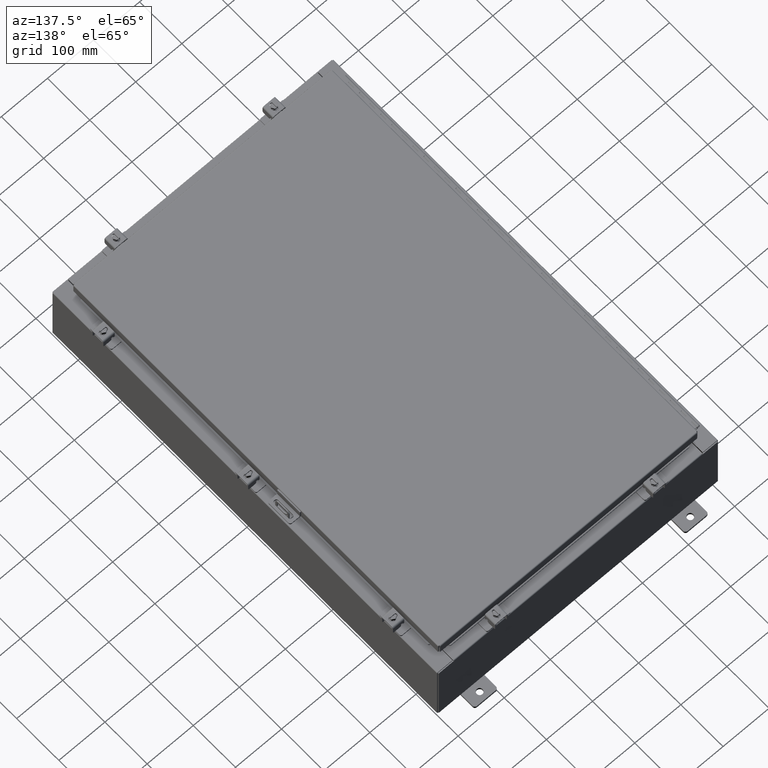
[diagram: clean part render]
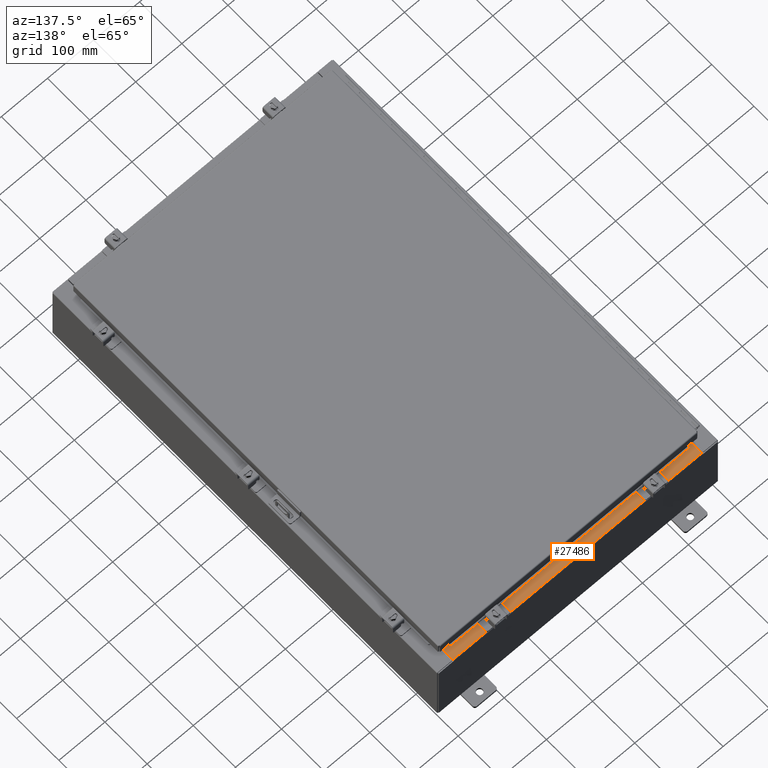
[diagram: same view with one face highlighted and labeled with its STEP entity id]
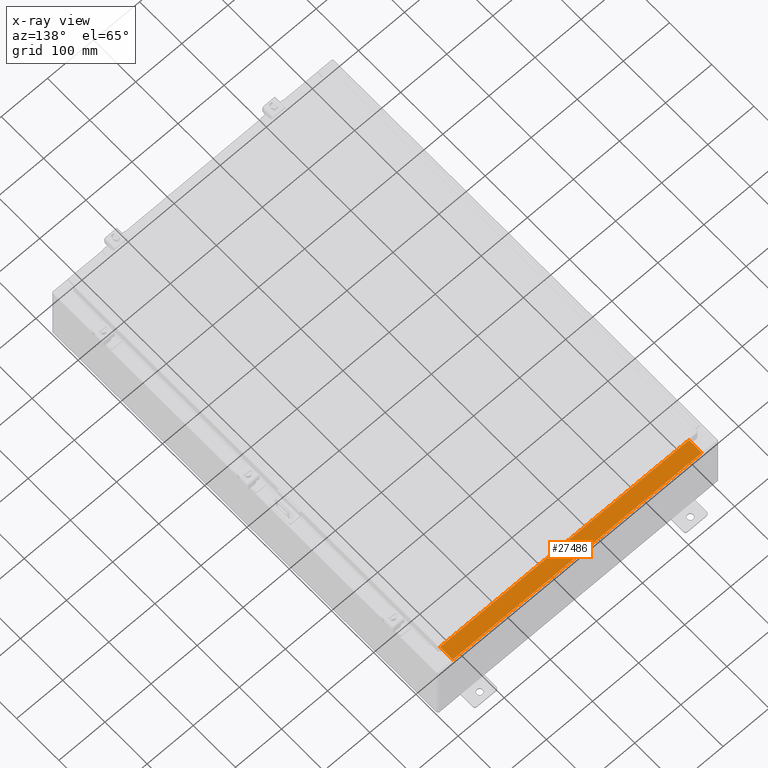
[diagram: x-ray of the same camera — body ghosted, the highlighted face saturated]
A machine part, auxiliary view. The second image highlights one B-rep face of the part: STEP entity #27486.
The next image is the same camera in x-ray: the body ghosted, the highlighted face saturated — about 0% of this face is hidden behind the body in this view.
In plain terms, the highlighted planar face has unit normal (0, 0, 1).
Its self-contained STEP definition (entity closure, byte-faithful):
#235 = CARTESIAN_POINT ( 'NONE',  ( 0.0000000000000000000, 1.069354855923099900E-014, 3.000000000000000900 ) ) ;
#1636 = DIRECTION ( 'NONE',  ( -1.000000000000000000, 0.0000000000000000000, 0.0000000000000000000 ) ) ;
#1914 = CARTESIAN_POINT ( 'NONE',  ( 10.63720000000000400, -0.08769999999999965300, 3.000000000000000900 ) ) ;
#2040 = ORIENTED_EDGE ( 'NONE', *, *, #34037, .T. ) ;
#4123 = DIRECTION ( 'NONE',  ( 0.0000000000000000000, -1.000000000000000000, 3.566381192773190000E-015 ) ) ;
#5288 = LINE ( 'NONE', #31307, #12961 ) ;
#8801 = EDGE_CURVE ( 'NONE', #19296, #25351, #34782, .T. ) ;
#11916 = VECTOR ( 'NONE', #1636, 39.37007874015748100 ) ;
#12663 = CARTESIAN_POINT ( 'NONE',  ( -10.63720000000000200, -1.287299999999999200, 3.000000000000005300 ) ) ;
#12961 = VECTOR ( 'NONE', #14888, 39.37007874015748100 ) ;
#13404 = DIRECTION ( 'NONE',  ( -0.0000000000000000000, -1.000000000000000000, 3.566381192773190000E-015 ) ) ;
#14888 = DIRECTION ( 'NONE',  ( -0.0000000000000000000, 1.000000000000000000, -3.566381192773190000E-015 ) ) ;
#15396 = LINE ( 'NONE', #38104, #31903 ) ;
#16310 = ORIENTED_EDGE ( 'NONE', *, *, #33960, .F. ) ;
#18091 = DIRECTION ( 'NONE',  ( -1.000000000000000000, 2.568202152506545800E-017, -9.159187855938968600E-032 ) ) ;
#19296 = VERTEX_POINT ( 'NONE', #1914 ) ;
#19997 = CARTESIAN_POINT ( 'NONE',  ( 10.63720000000000200, -1.287299999999999900, 3.000000000000005300 ) ) ;
#21092 = CARTESIAN_POINT ( 'NONE',  ( 10.63720000000000400, -1.287299999999999900, 3.000000000000005300 ) ) ;
#23281 = FACE_OUTER_BOUND ( 'NONE', #41057, .T. ) ;
#23866 = AXIS2_PLACEMENT_3D ( 'NONE', #235, #36045, #4123 ) ;
#24463 = VERTEX_POINT ( 'NONE', #12663 ) ;
#25351 = VERTEX_POINT ( 'NONE', #19997 ) ;
#27486 = ADVANCED_FACE ( 'NONE', ( #23281 ), #31688, .T. ) ;
#30357 = LINE ( 'NONE', #21092, #11916 ) ;
#31307 = CARTESIAN_POINT ( 'NONE',  ( -10.63720000000000200, -0.07469999999999973900, 3.000000000000000900 ) ) ;
#31688 = PLANE ( 'NONE',  #23866 ) ;
#31896 = ORIENTED_EDGE ( 'NONE', *, *, #8801, .F. ) ;
#31903 = VECTOR ( 'NONE', #18091, 39.37007874015748100 ) ;
#33151 = ORIENTED_EDGE ( 'NONE', *, *, #33532, .F. ) ;
#33532 = EDGE_CURVE ( 'NONE', #24463, #34702, #5288, .T. ) ;
#33960 = EDGE_CURVE ( 'NONE', #25351, #24463, #30357, .T. ) ;
#34037 = EDGE_CURVE ( 'NONE', #19296, #34702, #15396, .T. ) ;
#34702 = VERTEX_POINT ( 'NONE', #38252 ) ;
#34782 = LINE ( 'NONE', #37524, #39408 ) ;
#36045 = DIRECTION ( 'NONE',  ( 0.0000000000000000000, 3.566381192773190000E-015, 1.000000000000000000 ) ) ;
#37524 = CARTESIAN_POINT ( 'NONE',  ( 10.63720000000000200, -1.300299999999999800, 3.000000000000005300 ) ) ;
#38104 = CARTESIAN_POINT ( 'NONE',  ( -2.252313287748515100E-018, -0.08770000000000000000, 3.000000000000001300 ) ) ;
#38252 = CARTESIAN_POINT ( 'NONE',  ( -10.63720000000000200, -0.08770000000000000000, 3.000000000000000900 ) ) ;
#39408 = VECTOR ( 'NONE', #13404, 39.37007874015748100 ) ;
#41057 = EDGE_LOOP ( 'NONE', ( #33151, #16310, #31896, #2040 ) ) ;